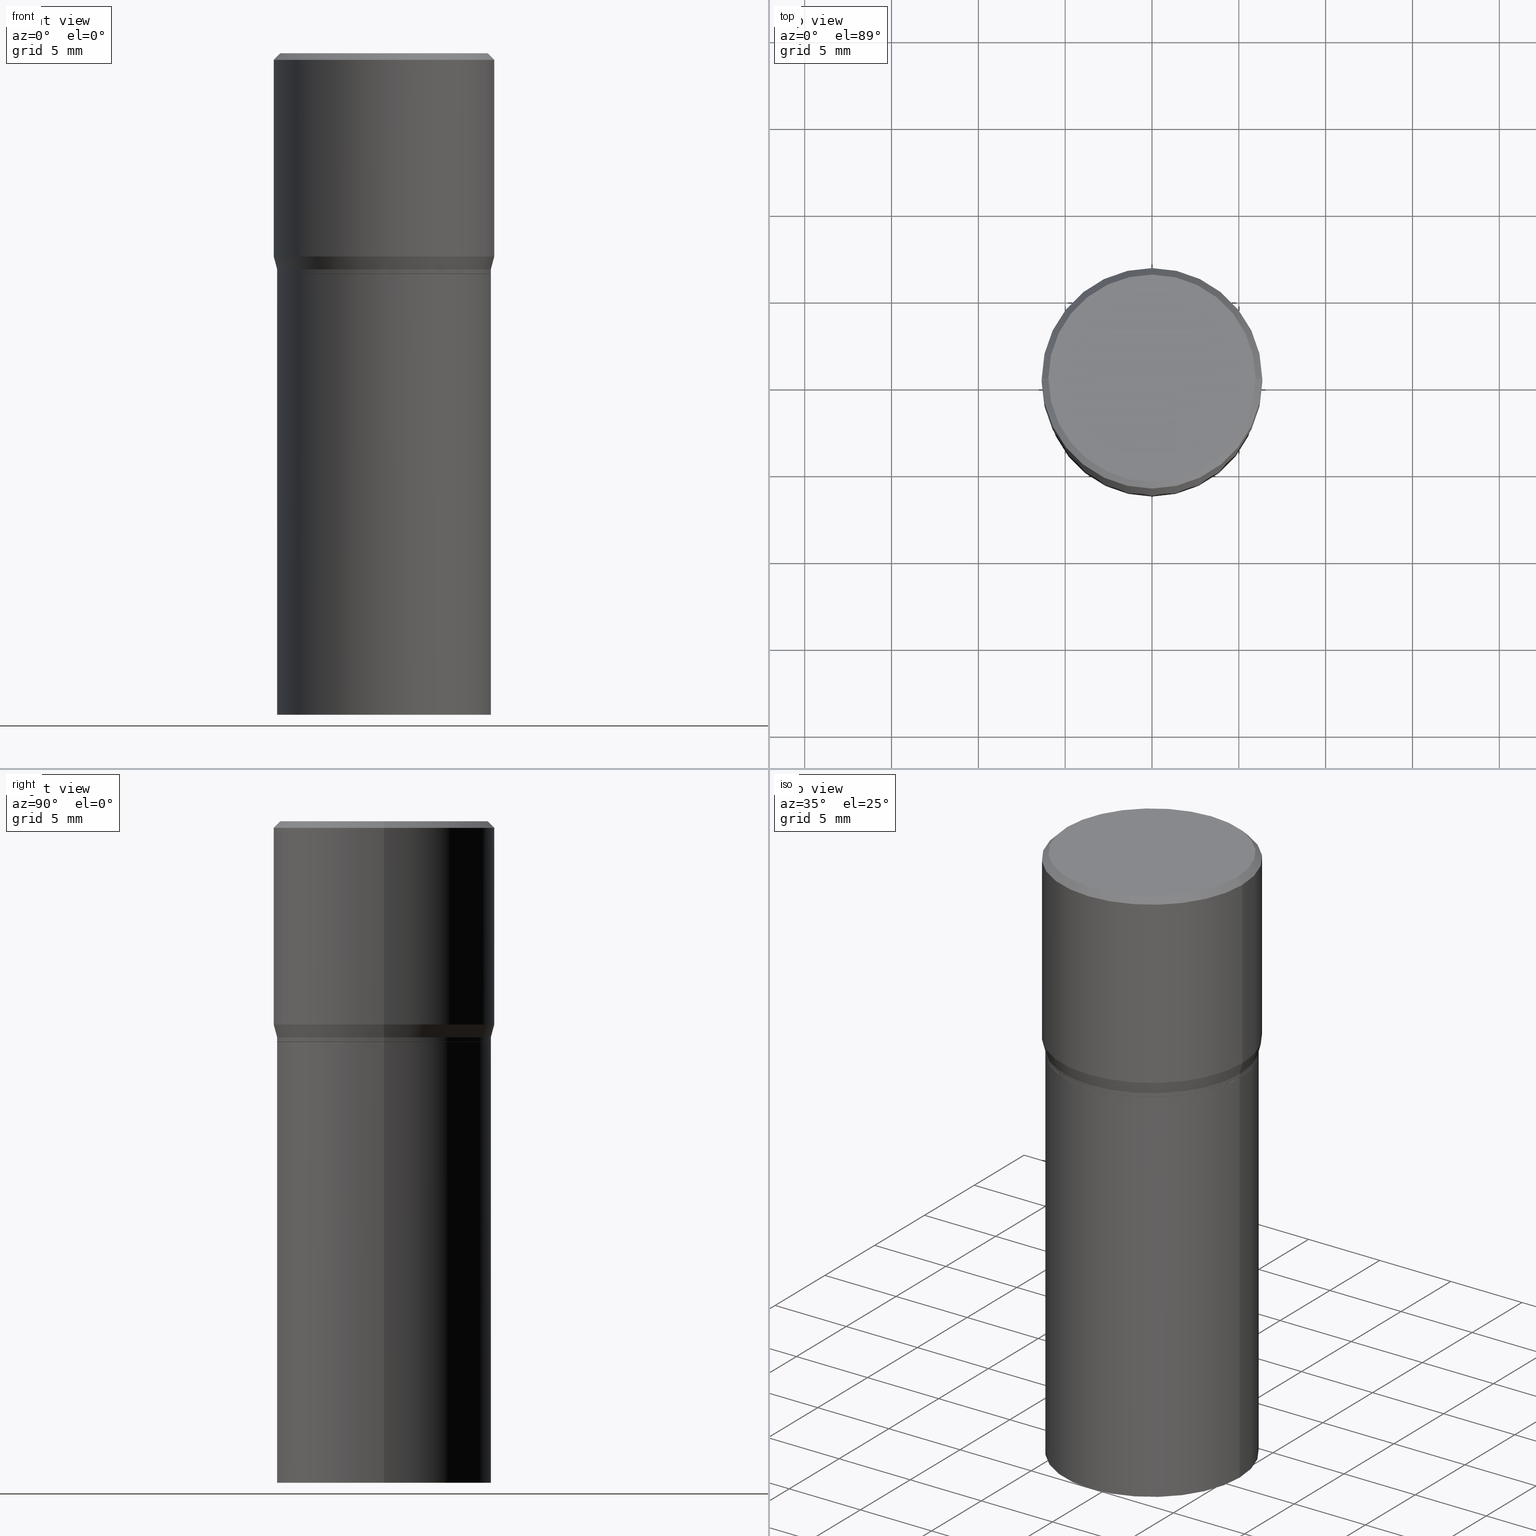
[diagram: canonical four-view strip — front | top / right | iso, engineering-drawing reading convention]
A machine part, canonical four-view strip (front | top / right | iso — engineering-drawing reading convention). The complete STEP part file that produces these views, byte-faithful:
ISO-10303-21;
HEADER;
FILE_DESCRIPTION (( 'STEP AP203' ),
    '1' );
FILE_NAME ('30841.STEP',
    '2024-03-13T16:27:30',
    ( '' ),
    ( '' ),
    'SwSTEP 2.0',
    'SolidWorks 2023',
    '' );
FILE_SCHEMA (( 'CONFIG_CONTROL_DESIGN' ));
ENDSEC;

DATA;
#1 = APPLICATION_PROTOCOL_DEFINITION ( 'international standard', 'config_control_design', 1994, #102 ) ;
#2 = VERTEX_POINT ( 'NONE', #107 ) ;
#3 = CLOSED_SHELL ( 'NONE', ( #450, #263, #415, #138, #155, #277, #188, #194, #311, #252, #261, #363 ) ) ;
#4 =( GEOMETRIC_REPRESENTATION_CONTEXT ( 3 ) GLOBAL_UNCERTAINTY_ASSIGNED_CONTEXT ( ( #430 ) ) GLOBAL_UNIT_ASSIGNED_CONTEXT ( ( #10, #143, #174 ) ) REPRESENTATION_CONTEXT ( 'NONE', 'WORKASPACE' ) );
#5 = PERSON ( 'UNSPECIFIED', 'UNSPECIFIED', 'UNSPECIFIED', ('UNSPECIFIED'), ('UNSPECIFIED'), ('UNSPECIFIED') ) ;
#6 = CYLINDRICAL_SURFACE ( 'NONE', #234, 0.2500000000000000000 ) ;
#7 = DIRECTION ( 'NONE',  ( 0.000000000000000000, 0.000000000000000000, 1.000000000000000000 ) ) ;
#8 = DIRECTION ( 'NONE',  ( -0.7071067811865441310, 2.468850131082221167E-15, -0.7071067811865509034 ) ) ;
#9 = APPROVAL ( #179, 'UNSPECIFIED' ) ;
#10 =( CONVERSION_BASED_UNIT ( 'INCH', #100 ) LENGTH_UNIT ( ) NAMED_UNIT ( #152 ) );
#11 = DIRECTION ( 'NONE',  ( -2.445468806185136877E-29, 3.491481338843145188E-15, 1.000000000000000000 ) ) ;
#12 = CIRCLE ( 'NONE', #375, 0.2349999999999999867 ) ;
#13 = LOCAL_TIME ( 12, 27, 30.00000000000000000, #429 ) ;
#14 = APPROVAL_STATUS ( 'not_yet_approved' ) ;
#15 = DIRECTION ( 'NONE',  ( 1.000000000000000000, -6.982962677686267499E-15, 4.878549297894958458E-29 ) ) ;
#16 = DIRECTION ( 'NONE',  ( -2.445468806185136597E-29, 3.491481338843145583E-15, 1.000000000000000000 ) ) ;
#17 = DIRECTION ( 'NONE',  ( 2.445468806185136597E-29, -3.491481338843145583E-15, -1.000000000000000000 ) ) ;
#18 = VECTOR ( 'NONE', #117, 39.37007874015748143 ) ;
#19 = CYLINDRICAL_SURFACE ( 'NONE', #265, 0.2422000000000000264 ) ;
#20 = CC_DESIGN_SECURITY_CLASSIFICATION ( #355, ( #384 ) ) ;
#21 = DIRECTION ( 'NONE',  ( 1.000000000000000000, -6.982962677686266711E-15, 0.000000000000000000 ) ) ;
#22 = CARTESIAN_POINT ( 'NONE',  ( 1.222734403092568719E-29, -1.745740669421573186E-15, -0.5000000000000001110 ) ) ;
#23 = EDGE_CURVE ( 'NONE', #126, #314, #243, .T. ) ;
#24 = DIRECTION ( 'NONE',  ( 1.000000000000000000, -6.982962677686267499E-15, 4.878549297894958458E-29 ) ) ;
#25 = CIRCLE ( 'NONE', #266, 0.2422000000000000264 ) ;
#26 = FACE_OUTER_BOUND ( 'NONE', #391, .T. ) ;
#27 = ORIENTED_EDGE ( 'NONE', *, *, #35, .F. ) ;
#28 = MANIFOLD_SOLID_BREP ( 'Body-Move/Copy2[1]', #224 ) ;
#29 = LINE ( 'NONE', #422, #116 ) ;
#30 = DIRECTION ( 'NONE',  ( 1.000000000000000000, -6.982962677686266711E-15, 0.000000000000000000 ) ) ;
#31 = CARTESIAN_POINT ( 'NONE',  ( 3.668203209277704895E-29, -5.237222008264718177E-15, -1.500000000000000222 ) ) ;
#32 = EDGE_LOOP ( 'NONE', ( #423, #388, #458, #413 ) ) ;
#33 = CALENDAR_DATE ( 2024, 13, 3 ) ;
#34 = EDGE_CURVE ( 'NONE', #137, #63, #12, .T. ) ;
#35 = EDGE_CURVE ( 'NONE', #128, #56, #192, .T. ) ;
#36 = CARTESIAN_POINT ( 'NONE',  ( 0.000000000000000000, 0.000000000000000000, 0.000000000000000000 ) ) ;
#37 = LINE ( 'NONE', #360, #354 ) ;
#38 = CIRCLE ( 'NONE', #91, 0.2422000000000000264 ) ;
#39 = APPROVAL_PERSON_ORGANIZATION ( #44, #118, #253 ) ;
#40 = PERSON_AND_ORGANIZATION_ROLE ( 'design_supplier' ) ;
#41 = DIRECTION ( 'NONE',  ( 1.000000000000000000, -6.982962677686266711E-15, 0.000000000000000000 ) ) ;
#42 = CC_DESIGN_PERSON_AND_ORGANIZATION_ASSIGNMENT ( #288, #70, ( #248 ) ) ;
#43 = CARTESIAN_POINT ( 'NONE',  ( -0.2349999999999999867, 1.667182339297596256E-15, 1.568636843340762393E-16 ) ) ;
#44 = PERSON_AND_ORGANIZATION ( #5, #447 ) ;
#45 = EDGE_LOOP ( 'NONE', ( #313, #211, #136, #283 ) ) ;
#46 = DIRECTION ( 'NONE',  ( -2.445468806185136597E-29, 3.491481338843145583E-15, 1.000000000000000000 ) ) ;
#47 = LOCAL_TIME ( 12, 27, 30.00000000000000000, #358 ) ;
#48 = ORIENTED_EDGE ( 'NONE', *, *, #203, .F. ) ;
#49 = CARTESIAN_POINT ( 'NONE',  ( -0.2421999999999999431, 1.010864997782067697E-17, -0.4900000000000001021 ) ) ;
#50 = CARTESIAN_POINT ( 'NONE',  ( 1.222734403092568719E-29, -1.745740669421573186E-15, -0.5000000000000001110 ) ) ;
#51 = ORIENTED_EDGE ( 'NONE', *, *, #364, .F. ) ;
#52 = DIRECTION ( 'NONE',  ( 1.000000000000000000, -6.982962677686265922E-15, 4.876176775795935793E-29 ) ) ;
#53 = DIRECTION ( 'NONE',  ( -2.445468806185136597E-29, 3.491481338843145583E-15, 1.000000000000000000 ) ) ;
#54 = LINE ( 'NONE', #337, #393 ) ;
#55 = DIRECTION ( 'NONE',  ( -1.000000000000000000, 6.982962677686266711E-15, 0.000000000000000000 ) ) ;
#56 = VERTEX_POINT ( 'NONE', #189 ) ;
#57 = AXIS2_PLACEMENT_3D ( 'NONE', #36, #7, #394 ) ;
#58 = DIRECTION ( 'NONE',  ( -2.445468806185136597E-29, 3.491481338843145583E-15, 1.000000000000000000 ) ) ;
#59 = CARTESIAN_POINT ( 'NONE',  ( 0.000000000000000000, 0.000000000000000000, 0.000000000000000000 ) ) ;
#60 = DIRECTION ( 'NONE',  ( 1.000000000000000000, -6.982962677686266711E-15, 0.000000000000000000 ) ) ;
#61 = AXIS2_PLACEMENT_3D ( 'NONE', #457, #379, #166 ) ;
#62 = AXIS2_PLACEMENT_3D ( 'NONE', #127, #416, #310 ) ;
#63 = VERTEX_POINT ( 'NONE', #43 ) ;
#64 = DIRECTION ( 'NONE',  ( -0.7071067811865715536, 7.493145998870439357E-15, 0.7071067811865232589 ) ) ;
#65 = ORIENTED_EDGE ( 'NONE', *, *, #213, .T. ) ;
#66 = EDGE_LOOP ( 'NONE', ( #89, #402 ) ) ;
#67 = APPLICATION_PROTOCOL_DEFINITION ( 'international standard', 'config_control_design', 1994, #242 ) ;
#68 = ORIENTED_EDGE ( 'NONE', *, *, #129, .T. ) ;
#69 = EDGE_LOOP ( 'NONE', ( #434, #297 ) ) ;
#70 = PERSON_AND_ORGANIZATION_ROLE ( 'creator' ) ;
#71 = DIRECTION ( 'NONE',  ( -2.445468806185136597E-29, 3.491481338843145583E-15, 1.000000000000000000 ) ) ;
#72 = CALENDAR_DATE ( 2024, 13, 3 ) ;
#73 = CARTESIAN_POINT ( 'NONE',  ( -3.836052468622837406E-45, 5.476866265946494270E-31, 1.568636843340877764E-16 ) ) ;
#74 = MECHANICAL_CONTEXT ( 'NONE', #102, 'mechanical' ) ;
#75 = ORIENTED_EDGE ( 'NONE', *, *, #197, .F. ) ;
#76 = CARTESIAN_POINT ( 'NONE',  ( 1.127092127133256402E-29, -1.609188847181259404E-15, -0.4608900037009626693 ) ) ;
#77 = ORIENTED_EDGE ( 'NONE', *, *, #341, .F. ) ;
#78 = ORIENTED_EDGE ( 'NONE', *, *, #456, .F. ) ;
#79 = AXIS2_PLACEMENT_3D ( 'NONE', #237, #377, #312 ) ;
#80 = CARTESIAN_POINT ( 'NONE',  ( 1.221511668689476057E-29, -1.743994928752151682E-15, -0.4995000000000001661 ) ) ;
#81 = CARTESIAN_POINT ( 'NONE',  ( 0.2500000000000000000, -1.798112889504214151E-15, -0.01499999999999999944 ) ) ;
#82 = ADVANCED_FACE ( 'NONE', ( #289 ), #287, .T. ) ;
#83 = CC_DESIGN_DATE_AND_TIME_ASSIGNMENT ( #182, #148, ( #355 ) ) ;
#84 = CARTESIAN_POINT ( 'NONE',  ( -0.2422000000000000264, -1.770546832832183337E-15, -0.5000000000000001110 ) ) ;
#85 = AXIS2_PLACEMENT_3D ( 'NONE', #334, #330, #21 ) ;
#86 = DIRECTION ( 'NONE',  ( -2.445468806185136597E-29, 3.491481338843145583E-15, 1.000000000000000000 ) ) ;
#87 = DIRECTION ( 'NONE',  ( 2.438088387897960049E-29, -3.491481338843145188E-15, -1.000000000000000000 ) ) ;
#88 = LINE ( 'NONE', #465, #461 ) ;
#89 = ORIENTED_EDGE ( 'NONE', *, *, #221, .T. ) ;
#90 = CYLINDRICAL_SURFACE ( 'NONE', #405, 0.2421999999999999709 ) ;
#91 = AXIS2_PLACEMENT_3D ( 'NONE', #80, #227, #449 ) ;
#92 = CC_DESIGN_APPROVAL ( #118, ( #384 ) ) ;
#93 = CARTESIAN_POINT ( 'NONE',  ( 1.127092127133256402E-29, -1.609188847181259404E-15, -0.4608900037009626693 ) ) ;
#94 = ORIENTED_EDGE ( 'NONE', *, *, #203, .T. ) ;
#95 = DIRECTION ( 'NONE',  ( -2.445468806185136597E-29, 3.491481338843145583E-15, 1.000000000000000000 ) ) ;
#96 = CARTESIAN_POINT ( 'NONE',  ( 0.2421999999999999431, -3.402099416568755134E-15, -0.4900000000000001021 ) ) ;
#97 = ORIENTED_EDGE ( 'NONE', *, *, #115, .T. ) ;
#98 = AXIS2_PLACEMENT_3D ( 'NONE', #167, #308, #209 ) ;
#99 = EDGE_CURVE ( 'NONE', #219, #463, #273, .T. ) ;
#100 = LENGTH_MEASURE_WITH_UNIT ( LENGTH_MEASURE( 0.02539999999999999897 ), #350 );
#101 = DIRECTION ( 'NONE',  ( -2.445468806185136597E-29, 3.491481338843145583E-15, 1.000000000000000000 ) ) ;
#102 = APPLICATION_CONTEXT ( 'configuration controlled 3d designs of mechanical parts and assemblies' ) ;
#103 = ORIENTED_EDGE ( 'NONE', *, *, #269, .F. ) ;
#104 = PERSON_AND_ORGANIZATION_ROLE ( 'creator' ) ;
#105 = LINE ( 'NONE', #247, #109 ) ;
#106 = DATE_AND_TIME ( #427, #13 ) ;
#107 = CARTESIAN_POINT ( 'NONE',  ( -0.2422000000000000264, -1.770546832832183337E-15, -1.500000000000000222 ) ) ;
#108 = AXIS2_PLACEMENT_3D ( 'NONE', #50, #86, #404 ) ;
#109 = VECTOR ( 'NONE', #318, 39.37007874015748143 ) ;
#110 = AXIS2_PLACEMENT_3D ( 'NONE', #344, #95, #30 ) ;
#111 = DATE_AND_TIME ( #439, #419 ) ;
#112 = ORIENTED_EDGE ( 'NONE', *, *, #34, .F. ) ;
#113 = FACE_OUTER_BOUND ( 'NONE', #32, .T. ) ;
#114 = CARTESIAN_POINT ( 'NONE',  ( 0.2422000000000000264, -6.928495568800332365E-15, -1.500000000000000222 ) ) ;
#115 = EDGE_CURVE ( 'NONE', #371, #314, #256, .T. ) ;
#116 = VECTOR ( 'NONE', #210, 39.37007874015748143 ) ;
#117 = DIRECTION ( 'NONE',  ( -2.445468806185136877E-29, 3.491481338843145188E-15, 1.000000000000000000 ) ) ;
#118 = APPROVAL ( #141, 'UNSPECIFIED' ) ;
#119 = EDGE_LOOP ( 'NONE', ( #464, #424, #68, #94 ) ) ;
#120 = DIRECTION ( 'NONE',  ( 1.000000000000000000, -6.982962677686266711E-15, 4.876176775795935793E-29 ) ) ;
#121 = LINE ( 'NONE', #160, #18 ) ;
#122 = AXIS2_PLACEMENT_3D ( 'NONE', #76, #149, #282 ) ;
#123 = CARTESIAN_POINT ( 'NONE',  ( 1.691273560535625824E-15, 0.2421999999999982778, -0.5000000000000009992 ) ) ;
#124 = CARTESIAN_POINT ( 'NONE',  ( 3.668203209277705088E-31, -5.237222008264718399E-17, -0.01499999999999999944 ) ) ;
#125 = VERTEX_POINT ( 'NONE', #223 ) ;
#126 = VERTEX_POINT ( 'NONE', #147 ) ;
#127 = CARTESIAN_POINT ( 'NONE',  ( 1.221511668689476057E-29, -1.743994928752151682E-15, -0.4995000000000001661 ) ) ;
#128 = VERTEX_POINT ( 'NONE', #440 ) ;
#129 = EDGE_CURVE ( 'NONE', #63, #463, #37, .T. ) ;
#130 = DIRECTION ( 'NONE',  ( -2.445468806185136597E-29, 3.491481338843145583E-15, 1.000000000000000000 ) ) ;
#131 = AXIS2_PLACEMENT_3D ( 'NONE', #443, #352, #41 ) ;
#132 = DESIGN_CONTEXT ( 'detailed design', #242, 'design' ) ;
#133 = ORIENTED_EDGE ( 'NONE', *, *, #351, .F. ) ;
#134 = CIRCLE ( 'NONE', #110, 0.2421999999999999431 ) ;
#135 = LINE ( 'NONE', #270, #162 ) ;
#136 = ORIENTED_EDGE ( 'NONE', *, *, #165, .F. ) ;
#137 = VERTEX_POINT ( 'NONE', #361 ) ;
#138 = ADVANCED_FACE ( 'NONE', ( #113 ), #176, .T. ) ;
#139 = CARTESIAN_POINT ( 'NONE',  ( -0.2500000000000000000, 9.455763057682970257E-16, -0.01499999999999999944 ) ) ;
#140 = ORIENTED_EDGE ( 'NONE', *, *, #165, .T. ) ;
#141 = APPROVAL_STATUS ( 'not_yet_approved' ) ;
#142 = AXIS2_PLACEMENT_3D ( 'NONE', #124, #276, #55 ) ;
#143 =( NAMED_UNIT ( * ) PLANE_ANGLE_UNIT ( ) SI_UNIT ( $, .RADIAN. ) );
#144 = EDGE_LOOP ( 'NONE', ( #306, #51 ) ) ;
#145 = ORIENTED_EDGE ( 'NONE', *, *, #401, .F. ) ;
#146 = COORDINATED_UNIVERSAL_TIME_OFFSET ( 5, 0, .BEHIND. ) ;
#147 = CARTESIAN_POINT ( 'NONE',  ( -0.2421999999999999431, 8.863832109840594652E-17, -0.4900000000000001021 ) ) ;
#148 = DATE_TIME_ROLE ( 'classification_date' ) ;
#149 = DIRECTION ( 'NONE',  ( -2.445468806185136597E-29, 3.491481338843145583E-15, 1.000000000000000000 ) ) ;
#150 = AXIS2_PLACEMENT_3D ( 'NONE', #411, #53, #336 ) ;
#151 = PERSON_AND_ORGANIZATION ( #5, #447 ) ;
#152 = DIMENSIONAL_EXPONENTS ( 1.000000000000000000, 0.000000000000000000, 0.000000000000000000, 0.000000000000000000, 0.000000000000000000, 0.000000000000000000, 0.000000000000000000 ) ;
#153 = ORIENTED_EDGE ( 'NONE', *, *, #417, .T. ) ;
#154 = DIRECTION ( 'NONE',  ( 1.000000000000000000, -6.982962677686266711E-15, 0.000000000000000000 ) ) ;
#155 = ADVANCED_FACE ( 'NONE', ( #400 ), #177, .T. ) ;
#156 = DIRECTION ( 'NONE',  ( 1.000000000000000000, -6.982962677686266711E-15, 0.000000000000000000 ) ) ;
#157 = APPROVAL_PERSON_ORGANIZATION ( #390, #9, #285 ) ;
#158 = PLANE ( 'NONE',  #460 ) ;
#159 = LINE ( 'NONE', #230, #228 ) ;
#160 = CARTESIAN_POINT ( 'NONE',  ( 0.2422000000000000264, -1.691273560535613991E-15, 1.181010015097775692E-29 ) ) ;
#161 = AXIS2_PLACEMENT_3D ( 'NONE', #195, #17, #190 ) ;
#162 = VECTOR ( 'NONE', #386, 39.37007874015748143 ) ;
#163 = DIRECTION ( 'NONE',  ( -2.445468806185136597E-29, 3.491481338843145583E-15, 1.000000000000000000 ) ) ;
#164 = ORIENTED_EDGE ( 'NONE', *, *, #35, .T. ) ;
#165 = EDGE_CURVE ( 'NONE', #218, #202, #309, .T. ) ;
#166 = DIRECTION ( 'NONE',  ( -1.000000000000000000, 6.982962677686265922E-15, -4.876176775795935793E-29 ) ) ;
#167 = CARTESIAN_POINT ( 'NONE',  ( 3.668203209277704895E-29, -5.237222008264718177E-15, -1.500000000000000222 ) ) ;
#168 = ORIENTED_EDGE ( 'NONE', *, *, #456, .T. ) ;
#169 = CC_DESIGN_PERSON_AND_ORGANIZATION_ASSIGNMENT ( #249, #222, ( #355 ) ) ;
#170 = CONICAL_SURFACE ( 'NONE', #368, 0.2417000000000000259, 0.7853981633974824739 ) ;
#171 = CARTESIAN_POINT ( 'NONE',  ( 1.222734403092568719E-29, -1.745740669421573186E-15, -0.5000000000000001110 ) ) ;
#172 = CIRCLE ( 'NONE', #62, 0.2422000000000000264 ) ;
#173 = CARTESIAN_POINT ( 'NONE',  ( 0.2422000000000000264, -3.435268489287765674E-15, -0.4995000000000001661 ) ) ;
#174 =( NAMED_UNIT ( * ) SI_UNIT ( $, .STERADIAN. ) SOLID_ANGLE_UNIT ( ) );
#175 = DATE_AND_TIME ( #387, #47 ) ;
#176 = CYLINDRICAL_SURFACE ( 'NONE', #187, 0.2500000000000000000 ) ;
#177 = CONICAL_SURFACE ( 'NONE', #403, 0.2421999999999999431, 0.2617993877991494078 ) ;
#178 = AXIS2_PLACEMENT_3D ( 'NONE', #171, #271, #274 ) ;
#179 = APPROVAL_STATUS ( 'not_yet_approved' ) ;
#180 = ORIENTED_EDGE ( 'NONE', *, *, #99, .T. ) ;
#181 = EDGE_CURVE ( 'NONE', #56, #219, #105, .T. ) ;
#182 = DATE_AND_TIME ( #33, #395 ) ;
#183 = CARTESIAN_POINT ( 'NONE',  ( 0.2421999999999999709, -1.691273560535613794E-15, 1.181010015097775552E-29 ) ) ;
#184 = APPROVAL_DATE_TIME ( #322, #118 ) ;
#185 = ORIENTED_EDGE ( 'NONE', *, *, #433, .T. ) ;
#186 = DIRECTION ( 'NONE',  ( 1.000000000000000000, -6.982962677686266711E-15, 4.876176775795935232E-29 ) ) ;
#187 = AXIS2_PLACEMENT_3D ( 'NONE', #214, #46, #257 ) ;
#188 = ADVANCED_FACE ( 'NONE', ( #432 ), #6, .T. ) ;
#189 = CARTESIAN_POINT ( 'NONE',  ( 0.2500000000000000000, -3.354929516602825687E-15, -0.4608900037009626693 ) ) ;
#190 = DIRECTION ( 'NONE',  ( -1.000000000000000000, 6.982962677686266711E-15, 0.000000000000000000 ) ) ;
#191 = CARTESIAN_POINT ( 'NONE',  ( 0.2417000000000000259, -3.433522748618344170E-15, -0.5000000000000001110 ) ) ;
#192 = CIRCLE ( 'NONE', #122, 0.2500000000000000000 ) ;
#193 = CARTESIAN_POINT ( 'NONE',  ( 0.000000000000000000, 0.000000000000000000, 0.000000000000000000 ) ) ;
#194 = ADVANCED_FACE ( 'NONE', ( #260 ), #293, .T. ) ;
#195 = CARTESIAN_POINT ( 'NONE',  ( 3.668203209277705088E-31, -5.237222008264718399E-17, -0.01499999999999999944 ) ) ;
#196 = FACE_OUTER_BOUND ( 'NONE', #66, .T. ) ;
#197 = EDGE_CURVE ( 'NONE', #325, #371, #292, .T. ) ;
#198 = EDGE_CURVE ( 'NONE', #371, #125, #38, .T. ) ;
#199 = AXIS2_PLACEMENT_3D ( 'NONE', #409, #296, #156 ) ;
#200 = CIRCLE ( 'NONE', #362, 0.2422000000000000264 ) ;
#201 = CARTESIAN_POINT ( 'NONE',  ( 0.2417000000000000259, -3.433522748618344170E-15, -0.5000000000000001110 ) ) ;
#202 = VERTEX_POINT ( 'NONE', #84 ) ;
#203 = EDGE_CURVE ( 'NONE', #463, #219, #208, .T. ) ;
#204 = DIRECTION ( 'NONE',  ( 1.000000000000000000, -6.982962677686266711E-15, 0.000000000000000000 ) ) ;
#205 = CC_DESIGN_DATE_AND_TIME_ASSIGNMENT ( #106, #320, ( #248 ) ) ;
#206 = ORIENTED_EDGE ( 'NONE', *, *, #23, .F. ) ;
#207 = DIRECTION ( 'NONE',  ( -2.445468806185136597E-29, 3.491481338843145583E-15, 1.000000000000000000 ) ) ;
#208 = CIRCLE ( 'NONE', #199, 0.2500000000000000000 ) ;
#209 = DIRECTION ( 'NONE',  ( 1.000000000000000000, -6.982962677686265922E-15, 0.000000000000000000 ) ) ;
#210 = DIRECTION ( 'NONE',  ( -2.445468806185136877E-29, 3.491481338843145188E-15, 1.000000000000000000 ) ) ;
#211 = ORIENTED_EDGE ( 'NONE', *, *, #437, .T. ) ;
#212 = CARTESIAN_POINT ( 'NONE',  ( 1.198279715030717173E-29, -1.710825856033141537E-15, -0.4900000000000001021 ) ) ;
#213 = EDGE_CURVE ( 'NONE', #220, #218, #121, .T. ) ;
#214 = CARTESIAN_POINT ( 'NONE',  ( 0.000000000000000000, 0.000000000000000000, 0.000000000000000000 ) ) ;
#215 = VECTOR ( 'NONE', #446, 39.37007874015748854 ) ;
#216 = CC_DESIGN_APPROVAL ( #9, ( #355 ) ) ;
#217 = PERSON_AND_ORGANIZATION ( #5, #447 ) ;
#218 = VERTEX_POINT ( 'NONE', #407 ) ;
#219 = VERTEX_POINT ( 'NONE', #81 ) ;
#220 = VERTEX_POINT ( 'NONE', #114 ) ;
#221 = EDGE_CURVE ( 'NONE', #63, #137, #452, .T. ) ;
#222 = PERSON_AND_ORGANIZATION_ROLE ( 'classification_officer' ) ;
#223 = CARTESIAN_POINT ( 'NONE',  ( -0.2422000000000000264, -2.306042274118916195E-17, -0.4995000000000001661 ) ) ;
#224 = CLOSED_SHELL ( 'NONE', ( #268, #414, #82, #298 ) ) ;
#225 = DIRECTION ( 'NONE',  ( 1.000000000000000000, -6.982962677686266711E-15, 4.876176775795935232E-29 ) ) ;
#226 = DIRECTION ( 'NONE',  ( -2.438088387897960049E-29, 3.491481338843145188E-15, 1.000000000000000000 ) ) ;
#227 = DIRECTION ( 'NONE',  ( -2.445468806185136597E-29, 3.491481338843145583E-15, 1.000000000000000000 ) ) ;
#228 = VECTOR ( 'NONE', #369, 39.37007874015748143 ) ;
#229 = EDGE_CURVE ( 'NONE', #137, #219, #54, .T. ) ;
#230 = CARTESIAN_POINT ( 'NONE',  ( -0.2500000000000000000, 1.776356839400250465E-15, -1.229733772563726445E-29 ) ) ;
#231 = DIRECTION ( 'NONE',  ( -1.000000000000000000, 6.982962677686265922E-15, -4.876176775795935793E-29 ) ) ;
#232 = DIRECTION ( 'NONE',  ( 1.000000000000000000, -6.982962677686267499E-15, 4.876176775795935793E-29 ) ) ;
#233 = ORIENTED_EDGE ( 'NONE', *, *, #349, .T. ) ;
#234 = AXIS2_PLACEMENT_3D ( 'NONE', #251, #392, #120 ) ;
#235 = APPROVAL ( #14, 'UNSPECIFIED' ) ;
#236 = CC_DESIGN_APPROVAL ( #235, ( #248 ) ) ;
#237 = CARTESIAN_POINT ( 'NONE',  ( 3.576687321579069994E-29, -5.368277968210015545E-15, -1.500000000000000222 ) ) ;
#238 = PRODUCT ( '30841', '30841', '', ( #74 ) ) ;
#239 = PLANE ( 'NONE',  #79 ) ;
#240 = EDGE_LOOP ( 'NONE', ( #397, #164, #250, #48 ) ) ;
#241 = FACE_OUTER_BOUND ( 'NONE', #144, .T. ) ;
#242 = APPLICATION_CONTEXT ( 'configuration controlled 3d designs of mechanical parts and assemblies' ) ;
#243 = CIRCLE ( 'NONE', #418, 0.2421999999999999431 ) ;
#244 = CARTESIAN_POINT ( 'NONE',  ( 0.2421999999999999431, -3.402099416568755134E-15, -0.4900000000000001021 ) ) ;
#245 = ORIENTED_EDGE ( 'NONE', *, *, #198, .F. ) ;
#246 = COORDINATED_UNIVERSAL_TIME_OFFSET ( 5, 0, .BEHIND. ) ;
#247 = CARTESIAN_POINT ( 'NONE',  ( 0.2500000000000000000, -1.745740669421566678E-15, 1.219044193948983948E-29 ) ) ;
#248 = PRODUCT_DEFINITION ( 'UNKNOWN', '', #384, #132 ) ;
#249 = PERSON_AND_ORGANIZATION ( #5, #447 ) ;
#250 = ORIENTED_EDGE ( 'NONE', *, *, #181, .T. ) ;
#251 = CARTESIAN_POINT ( 'NONE',  ( 0.000000000000000000, 0.000000000000000000, 0.000000000000000000 ) ) ;
#252 = ADVANCED_FACE ( 'NONE', ( #262 ), #158, .F. ) ;
#253 = APPROVAL_ROLE ( '' ) ;
#254 = ORIENTED_EDGE ( 'NONE', *, *, #115, .F. ) ;
#255 = PERSON_AND_ORGANIZATION ( #5, #447 ) ;
#256 = LINE ( 'NONE', #183, #259 ) ;
#257 = DIRECTION ( 'NONE',  ( 1.000000000000000000, -6.982962677686266711E-15, 4.876176775795935793E-29 ) ) ;
#258 = CARTESIAN_POINT ( 'NONE',  ( -3.836052468622837406E-45, 5.476866265946494270E-31, 1.568636843340877764E-16 ) ) ;
#259 = VECTOR ( 'NONE', #11, 39.37007874015748143 ) ;
#260 = FACE_OUTER_BOUND ( 'NONE', #119, .T. ) ;
#261 = ADVANCED_FACE ( 'NONE', ( #367 ), #170, .T. ) ;
#262 = FACE_OUTER_BOUND ( 'NONE', #69, .T. ) ;
#263 = ADVANCED_FACE ( 'NONE', ( #264 ), #425, .T. ) ;
#264 = FACE_OUTER_BOUND ( 'NONE', #284, .T. ) ;
#265 = AXIS2_PLACEMENT_3D ( 'NONE', #193, #444, #225 ) ;
#266 = AXIS2_PLACEMENT_3D ( 'NONE', #31, #412, #462 ) ;
#267 = DIRECTION ( 'NONE',  ( -2.445468806185136597E-29, 3.491481338843145583E-15, 1.000000000000000000 ) ) ;
#268 = ADVANCED_FACE ( 'NONE', ( #331 ), #19, .T. ) ;
#269 = EDGE_CURVE ( 'NONE', #126, #128, #365, .T. ) ;
#270 = CARTESIAN_POINT ( 'NONE',  ( -0.2421999999999999709, 1.720934506010962443E-15, -1.191366078859738065E-29 ) ) ;
#271 = DIRECTION ( 'NONE',  ( -2.445468806185136597E-29, 3.491481338843145583E-15, 1.000000000000000000 ) ) ;
#272 = EDGE_LOOP ( 'NONE', ( #153, #304, #275, #77 ) ) ;
#273 = CIRCLE ( 'NONE', #131, 0.2500000000000000000 ) ;
#274 = DIRECTION ( 'NONE',  ( 1.000000000000000000, -6.982962677686266711E-15, 0.000000000000000000 ) ) ;
#275 = ORIENTED_EDGE ( 'NONE', *, *, #378, .F. ) ;
#276 = DIRECTION ( 'NONE',  ( 2.445468806185136597E-29, -3.491481338843145583E-15, -1.000000000000000000 ) ) ;
#277 = ADVANCED_FACE ( 'NONE', ( #448 ), #286, .T. ) ;
#278 = APPROVAL_ROLE ( '' ) ;
#279 = EDGE_CURVE ( 'NONE', #128, #463, #159, .T. ) ;
#280 = EDGE_CURVE ( 'NONE', #385, #325, #346, .T. ) ;
#281 = PERSON_AND_ORGANIZATION_ROLE ( 'design_owner' ) ;
#282 = DIRECTION ( 'NONE',  ( 1.000000000000000000, -6.982962677686266711E-15, 0.000000000000000000 ) ) ;
#283 = ORIENTED_EDGE ( 'NONE', *, *, #213, .F. ) ;
#284 = EDGE_LOOP ( 'NONE', ( #233, #185, #245, #75 ) ) ;
#285 = APPROVAL_ROLE ( '' ) ;
#286 = CONICAL_SURFACE ( 'NONE', #85, 0.2421999999999999431, 0.2617993877991494078 ) ;
#287 = CYLINDRICAL_SURFACE ( 'NONE', #301, 0.2422000000000000264 ) ;
#288 = PERSON_AND_ORGANIZATION ( #5, #447 ) ;
#289 = FACE_OUTER_BOUND ( 'NONE', #315, .T. ) ;
#290 = APPROVAL_DATE_TIME ( #111, #9 ) ;
#291 = DIRECTION ( 'NONE',  ( 0.7071067811865441310, -7.319954787623245001E-15, -0.7071067811865509034 ) ) ;
#292 = LINE ( 'NONE', #191, #215 ) ;
#293 = CONICAL_SURFACE ( 'NONE', #161, 0.2500000000000000000, 0.7853981633974435050 ) ;
#294 = LOCAL_TIME ( 12, 27, 30.00000000000000000, #316 ) ;
#295 = DIRECTION ( 'NONE',  ( -0.2588190451025206840, 5.211531920934545520E-15, 0.9659258262890682012 ) ) ;
#296 = DIRECTION ( 'NONE',  ( -2.445468806185136597E-29, 3.491481338843145583E-15, 1.000000000000000000 ) ) ;
#297 = ORIENTED_EDGE ( 'NONE', *, *, #280, .F. ) ;
#298 = ADVANCED_FACE ( 'NONE', ( #299 ), #451, .F. ) ;
#299 = FACE_OUTER_BOUND ( 'NONE', #345, .T. ) ;
#300 = ORIENTED_EDGE ( 'NONE', *, *, #198, .T. ) ;
#301 = AXIS2_PLACEMENT_3D ( 'NONE', #321, #398, #186 ) ;
#302 = APPROVAL_PERSON_ORGANIZATION ( #255, #235, #278 ) ;
#303 = PLANE ( 'NONE',  #61 ) ;
#304 = ORIENTED_EDGE ( 'NONE', *, *, #269, .T. ) ;
#305 = FACE_OUTER_BOUND ( 'NONE', #455, .T. ) ;
#306 = ORIENTED_EDGE ( 'NONE', *, *, #442, .F. ) ;
#307 = PRODUCT_DEFINITION_SHAPE ( 'NONE', 'NONE',  #248 ) ;
#308 = DIRECTION ( 'NONE',  ( -2.445468806185136597E-29, 3.491481338843145583E-15, 1.000000000000000000 ) ) ;
#309 = CIRCLE ( 'NONE', #445, 0.2422000000000000264 ) ;
#310 = DIRECTION ( 'NONE',  ( 1.000000000000000000, -6.982962677686267499E-15, 0.000000000000000000 ) ) ;
#311 = ADVANCED_FACE ( 'NONE', ( #196 ), #303, .F. ) ;
#312 = DIRECTION ( 'NONE',  ( 1.000000000000000000, -6.982962677686265922E-15, 4.876176775795935793E-29 ) ) ;
#313 = ORIENTED_EDGE ( 'NONE', *, *, #442, .T. ) ;
#314 = VERTEX_POINT ( 'NONE', #244 ) ;
#315 = EDGE_LOOP ( 'NONE', ( #380, #389, #65, #78 ) ) ;
#316 = COORDINATED_UNIVERSAL_TIME_OFFSET ( 5, 0, .BEHIND. ) ;
#317 = VECTOR ( 'NONE', #339, 39.37007874015748854 ) ;
#318 = DIRECTION ( 'NONE',  ( -2.445468806185136877E-29, 3.491481338843145188E-15, 1.000000000000000000 ) ) ;
#319 = CC_DESIGN_PERSON_AND_ORGANIZATION_ASSIGNMENT ( #399, #40, ( #384 ) ) ;
#320 = DATE_TIME_ROLE ( 'creation_date' ) ;
#321 = CARTESIAN_POINT ( 'NONE',  ( 0.000000000000000000, 0.000000000000000000, 0.000000000000000000 ) ) ;
#322 = DATE_AND_TIME ( #72, #294 ) ;
#323 = DIRECTION ( 'NONE',  ( -2.445468806185136597E-29, 3.491481338843145583E-15, 1.000000000000000000 ) ) ;
#324 = EDGE_LOOP ( 'NONE', ( #421, #466, #340, #133 ) ) ;
#325 = VERTEX_POINT ( 'NONE', #201 ) ;
#326 = AXIS2_PLACEMENT_3D ( 'NONE', #381, #163, #232 ) ;
#327 = CARTESIAN_POINT ( 'NONE',  ( 1.198279715030717173E-29, -1.710825856033141537E-15, -0.4900000000000001021 ) ) ;
#328 = ORIENTED_EDGE ( 'NONE', *, *, #401, .T. ) ;
#329 = CC_DESIGN_PERSON_AND_ORGANIZATION_ASSIGNMENT ( #151, #281, ( #238 ) ) ;
#330 = DIRECTION ( 'NONE',  ( -2.445468806185136597E-29, 3.491481338843145583E-15, 1.000000000000000000 ) ) ;
#331 = FACE_OUTER_BOUND ( 'NONE', #45, .T. ) ;
#332 = AXIS2_PLACEMENT_3D ( 'NONE', #258, #370, #24 ) ;
#333 = CC_DESIGN_PERSON_AND_ORGANIZATION_ASSIGNMENT ( #217, #104, ( #384 ) ) ;
#334 = CARTESIAN_POINT ( 'NONE',  ( 1.198279715030717173E-29, -1.710825856033141537E-15, -0.4900000000000001021 ) ) ;
#335 = MANIFOLD_SOLID_BREP ( 'Body-Move/Copy2[2]', #3 ) ;
#336 = DIRECTION ( 'NONE',  ( 1.000000000000000000, -6.982962677686266711E-15, 0.000000000000000000 ) ) ;
#337 = CARTESIAN_POINT ( 'NONE',  ( 0.2500000000000000000, -1.767496719525530167E-15, -0.01499999999999999944 ) ) ;
#338 = AXIS2_PLACEMENT_3D ( 'NONE', #93, #207, #204 ) ;
#339 = DIRECTION ( 'NONE',  ( 0.2588190451025206840, 1.565188264969626504E-15, 0.9659258262890682012 ) ) ;
#340 = ORIENTED_EDGE ( 'NONE', *, *, #197, .T. ) ;
#341 = EDGE_CURVE ( 'NONE', #314, #56, #420, .T. ) ;
#342 = FACE_OUTER_BOUND ( 'NONE', #431, .T. ) ;
#343 = ORIENTED_EDGE ( 'NONE', *, *, #341, .T. ) ;
#344 = CARTESIAN_POINT ( 'NONE',  ( 1.198279715030717173E-29, -1.710825856033141537E-15, -0.4900000000000001021 ) ) ;
#345 = EDGE_LOOP ( 'NONE', ( #140, #168 ) ) ;
#346 = CIRCLE ( 'NONE', #150, 0.2417000000000000259 ) ;
#347 = CIRCLE ( 'NONE', #338, 0.2500000000000000000 ) ;
#348 = DIRECTION ( 'NONE',  ( 1.000000000000000000, -6.982962677686267499E-15, 4.876176775795935793E-29 ) ) ;
#349 = EDGE_CURVE ( 'NONE', #325, #385, #453, .T. ) ;
#350 =( LENGTH_UNIT ( ) NAMED_UNIT ( * ) SI_UNIT ( $, .METRE. ) );
#351 = EDGE_CURVE ( 'NONE', #125, #371, #172, .T. ) ;
#352 = DIRECTION ( 'NONE',  ( -2.445468806185136597E-29, 3.491481338843145583E-15, 1.000000000000000000 ) ) ;
#353 = PRODUCT_RELATED_PRODUCT_CATEGORY ( 'detail', '', ( #238 ) ) ;
#354 = VECTOR ( 'NONE', #8, 39.37007874015748143 ) ;
#355 = SECURITY_CLASSIFICATION ( '', '', #441 ) ;
#356 = DIRECTION ( 'NONE',  ( 1.000000000000000000, -6.982962677686266711E-15, 0.000000000000000000 ) ) ;
#357 = EDGE_LOOP ( 'NONE', ( #103, #382, #343, #27 ) ) ;
#358 = COORDINATED_UNIVERSAL_TIME_OFFSET ( 5, 0, .BEHIND. ) ;
#359 = ORIENTED_EDGE ( 'NONE', *, *, #129, .F. ) ;
#360 = CARTESIAN_POINT ( 'NONE',  ( -0.2500000000000000000, 1.693368449338919401E-15, -0.01499999999999999944 ) ) ;
#361 = CARTESIAN_POINT ( 'NONE',  ( 0.2349999999999999867, -1.689856874500919833E-15, 1.568636843340994368E-16 ) ) ;
#362 = AXIS2_PLACEMENT_3D ( 'NONE', #372, #130, #60 ) ;
#363 = ADVANCED_FACE ( 'NONE', ( #305 ), #90, .T. ) ;
#364 = EDGE_CURVE ( 'NONE', #2, #220, #25, .T. ) ;
#365 = LINE ( 'NONE', #49, #438 ) ;
#366 = CARTESIAN_POINT ( 'NONE',  ( 1.222734403092568719E-29, -1.745740669421573186E-15, -0.5000000000000001110 ) ) ;
#367 = FACE_OUTER_BOUND ( 'NONE', #324, .T. ) ;
#368 = AXIS2_PLACEMENT_3D ( 'NONE', #366, #267, #408 ) ;
#369 = DIRECTION ( 'NONE',  ( -2.445468806185136877E-29, 3.491481338843145188E-15, 1.000000000000000000 ) ) ;
#370 = DIRECTION ( 'NONE',  ( -2.445468806185136597E-29, 3.491481338843145583E-15, 1.000000000000000000 ) ) ;
#371 = VERTEX_POINT ( 'NONE', #173 ) ;
#372 = CARTESIAN_POINT ( 'NONE',  ( 1.222734403092568719E-29, -1.745740669421573186E-15, -0.5000000000000001110 ) ) ;
#373 = ORIENTED_EDGE ( 'NONE', *, *, #417, .F. ) ;
#374 = ADVANCED_BREP_SHAPE_REPRESENTATION ( '30841', ( #28, #335, #57 ), #4 ) ;
#375 = AXIS2_PLACEMENT_3D ( 'NONE', #73, #323, #15 ) ;
#376 = CIRCLE ( 'NONE', #98, 0.2422000000000000264 ) ;
#377 = DIRECTION ( 'NONE',  ( -2.438088387897960049E-29, 3.491481338843145188E-15, 1.000000000000000000 ) ) ;
#378 = EDGE_CURVE ( 'NONE', #56, #128, #347, .T. ) ;
#379 = DIRECTION ( 'NONE',  ( 2.438088387897960049E-29, -3.491481338843145188E-15, -1.000000000000000000 ) ) ;
#380 = ORIENTED_EDGE ( 'NONE', *, *, #437, .F. ) ;
#381 = CARTESIAN_POINT ( 'NONE',  ( 0.000000000000000000, 0.000000000000000000, 0.000000000000000000 ) ) ;
#382 = ORIENTED_EDGE ( 'NONE', *, *, #23, .T. ) ;
#383 = ORIENTED_EDGE ( 'NONE', *, *, #229, .T. ) ;
#384 = PRODUCT_DEFINITION_FORMATION_WITH_SPECIFIED_SOURCE ( 'ANY', '', #238, .NOT_KNOWN. ) ;
#385 = VERTEX_POINT ( 'NONE', #454 ) ;
#386 = DIRECTION ( 'NONE',  ( -2.445468806185136877E-29, 3.491481338843145188E-15, 1.000000000000000000 ) ) ;
#387 = CALENDAR_DATE ( 2024, 13, 3 ) ;
#388 = ORIENTED_EDGE ( 'NONE', *, *, #279, .T. ) ;
#389 = ORIENTED_EDGE ( 'NONE', *, *, #364, .T. ) ;
#390 = PERSON_AND_ORGANIZATION ( #5, #447 ) ;
#391 = EDGE_LOOP ( 'NONE', ( #300, #328, #373, #254 ) ) ;
#392 = DIRECTION ( 'NONE',  ( -2.445468806185136597E-29, 3.491481338843145583E-15, 1.000000000000000000 ) ) ;
#393 = VECTOR ( 'NONE', #291, 39.37007874015748143 ) ;
#394 = DIRECTION ( 'NONE',  ( 1.000000000000000000, 0.000000000000000000, 0.000000000000000000 ) ) ;
#395 = LOCAL_TIME ( 12, 27, 30.00000000000000000, #246 ) ;
#396 = DIRECTION ( 'NONE',  ( 1.000000000000000000, -6.982962677686266711E-15, 0.000000000000000000 ) ) ;
#397 = ORIENTED_EDGE ( 'NONE', *, *, #279, .F. ) ;
#398 = DIRECTION ( 'NONE',  ( -2.445468806185136597E-29, 3.491481338843145583E-15, 1.000000000000000000 ) ) ;
#399 = PERSON_AND_ORGANIZATION ( #5, #447 ) ;
#400 = FACE_OUTER_BOUND ( 'NONE', #272, .T. ) ;
#401 = EDGE_CURVE ( 'NONE', #125, #126, #135, .T. ) ;
#402 = ORIENTED_EDGE ( 'NONE', *, *, #34, .T. ) ;
#403 = AXIS2_PLACEMENT_3D ( 'NONE', #327, #16, #154 ) ;
#404 = DIRECTION ( 'NONE',  ( 1.000000000000000000, -6.982962677686266711E-15, 0.000000000000000000 ) ) ;
#405 = AXIS2_PLACEMENT_3D ( 'NONE', #59, #58, #348 ) ;
#406 = SHAPE_DEFINITION_REPRESENTATION ( #307, #374 ) ;
#407 = CARTESIAN_POINT ( 'NONE',  ( 0.2422000000000000264, -3.437014229957187177E-15, -0.5000000000000001110 ) ) ;
#408 = DIRECTION ( 'NONE',  ( 1.000000000000000000, -6.982962677686266711E-15, 0.000000000000000000 ) ) ;
#409 = CARTESIAN_POINT ( 'NONE',  ( 3.668203209277705088E-31, -5.237222008264718399E-17, -0.01499999999999999944 ) ) ;
#410 = AXIS2_PLACEMENT_3D ( 'NONE', #123, #87, #231 ) ;
#411 = CARTESIAN_POINT ( 'NONE',  ( 1.222734403092568719E-29, -1.745740669421573186E-15, -0.5000000000000001110 ) ) ;
#412 = DIRECTION ( 'NONE',  ( -2.445468806185136597E-29, 3.491481338843145583E-15, 1.000000000000000000 ) ) ;
#413 = ORIENTED_EDGE ( 'NONE', *, *, #181, .F. ) ;
#414 = ADVANCED_FACE ( 'NONE', ( #241 ), #239, .F. ) ;
#415 = ADVANCED_FACE ( 'NONE', ( #342 ), #426, .T. ) ;
#416 = DIRECTION ( 'NONE',  ( -2.445468806185136597E-29, 3.491481338843145583E-15, 1.000000000000000000 ) ) ;
#417 = EDGE_CURVE ( 'NONE', #314, #126, #134, .T. ) ;
#418 = AXIS2_PLACEMENT_3D ( 'NONE', #212, #71, #396 ) ;
#419 = LOCAL_TIME ( 12, 27, 30.00000000000000000, #146 ) ;
#420 = LINE ( 'NONE', #96, #317 ) ;
#421 = ORIENTED_EDGE ( 'NONE', *, *, #433, .F. ) ;
#422 = CARTESIAN_POINT ( 'NONE',  ( -0.2422000000000000264, 1.720934506010962838E-15, -1.191366078859738205E-29 ) ) ;
#423 = ORIENTED_EDGE ( 'NONE', *, *, #378, .T. ) ;
#424 = ORIENTED_EDGE ( 'NONE', *, *, #221, .F. ) ;
#425 = CONICAL_SURFACE ( 'NONE', #108, 0.2417000000000000259, 0.7853981633974824739 ) ;
#426 = CONICAL_SURFACE ( 'NONE', #142, 0.2500000000000000000, 0.7853981633974435050 ) ;
#427 = CALENDAR_DATE ( 2024, 13, 3 ) ;
#428 = CARTESIAN_POINT ( 'NONE',  ( 1.222734403092568719E-29, -1.745740669421573186E-15, -0.5000000000000001110 ) ) ;
#429 = COORDINATED_UNIVERSAL_TIME_OFFSET ( 5, 0, .BEHIND. ) ;
#430 = UNCERTAINTY_MEASURE_WITH_UNIT (LENGTH_MEASURE( 1.000000000000000082E-05 ), #10, 'distance_accuracy_value', 'NONE');
#431 = EDGE_LOOP ( 'NONE', ( #112, #383, #180, #359 ) ) ;
#432 = FACE_OUTER_BOUND ( 'NONE', #240, .T. ) ;
#433 = EDGE_CURVE ( 'NONE', #385, #125, #88, .T. ) ;
#434 = ORIENTED_EDGE ( 'NONE', *, *, #349, .F. ) ;
#435 = APPROVAL_DATE_TIME ( #175, #235 ) ;
#436 = ORIENTED_EDGE ( 'NONE', *, *, #351, .T. ) ;
#437 = EDGE_CURVE ( 'NONE', #2, #202, #29, .T. ) ;
#438 = VECTOR ( 'NONE', #295, 39.37007874015748854 ) ;
#439 = CALENDAR_DATE ( 2024, 13, 3 ) ;
#440 = CARTESIAN_POINT ( 'NONE',  ( -0.2500000000000000000, 1.671679922189909619E-16, -0.4608900037009626693 ) ) ;
#441 = SECURITY_CLASSIFICATION_LEVEL ( 'unclassified' ) ;
#442 = EDGE_CURVE ( 'NONE', #220, #2, #376, .T. ) ;
#443 = CARTESIAN_POINT ( 'NONE',  ( 3.668203209277705088E-31, -5.237222008264718399E-17, -0.01499999999999999944 ) ) ;
#444 = DIRECTION ( 'NONE',  ( -2.445468806185136597E-29, 3.491481338843145583E-15, 1.000000000000000000 ) ) ;
#445 = AXIS2_PLACEMENT_3D ( 'NONE', #428, #101, #356 ) ;
#446 = DIRECTION ( 'NONE',  ( 0.7071067811865715536, -2.468850131082509496E-15, 0.7071067811865232589 ) ) ;
#447 = ORGANIZATION ( 'UNSPECIFIED', 'UNSPECIFIED', '' ) ;
#448 = FACE_OUTER_BOUND ( 'NONE', #357, .T. ) ;
#449 = DIRECTION ( 'NONE',  ( 1.000000000000000000, -6.982962677686267499E-15, 0.000000000000000000 ) ) ;
#450 = ADVANCED_FACE ( 'NONE', ( #26 ), #459, .T. ) ;
#451 = PLANE ( 'NONE',  #410 ) ;
#452 = CIRCLE ( 'NONE', #332, 0.2349999999999999867 ) ;
#453 = CIRCLE ( 'NONE', #178, 0.2417000000000000259 ) ;
#454 = CARTESIAN_POINT ( 'NONE',  ( -0.2417000000000000259, -2.570964991530020892E-17, -0.5000000000000001110 ) ) ;
#455 = EDGE_LOOP ( 'NONE', ( #145, #436, #97, #206 ) ) ;
#456 = EDGE_CURVE ( 'NONE', #202, #218, #200, .T. ) ;
#457 = CARTESIAN_POINT ( 'NONE',  ( 1.640996229256272519E-15, 0.2349999999999999867, -7.420662724610952803E-16 ) ) ;
#458 = ORIENTED_EDGE ( 'NONE', *, *, #99, .F. ) ;
#459 = CYLINDRICAL_SURFACE ( 'NONE', #326, 0.2421999999999999709 ) ;
#460 = AXIS2_PLACEMENT_3D ( 'NONE', #22, #226, #52 ) ;
#461 = VECTOR ( 'NONE', #64, 39.37007874015748854 ) ;
#462 = DIRECTION ( 'NONE',  ( 1.000000000000000000, -6.982962677686265922E-15, 0.000000000000000000 ) ) ;
#463 = VERTEX_POINT ( 'NONE', #139 ) ;
#464 = ORIENTED_EDGE ( 'NONE', *, *, #229, .F. ) ;
#465 = CARTESIAN_POINT ( 'NONE',  ( -0.2417000000000000259, -2.835887708941101245E-17, -0.5000000000000001110 ) ) ;
#466 = ORIENTED_EDGE ( 'NONE', *, *, #280, .T. ) ;
ENDSEC;
END-ISO-10303-21;
